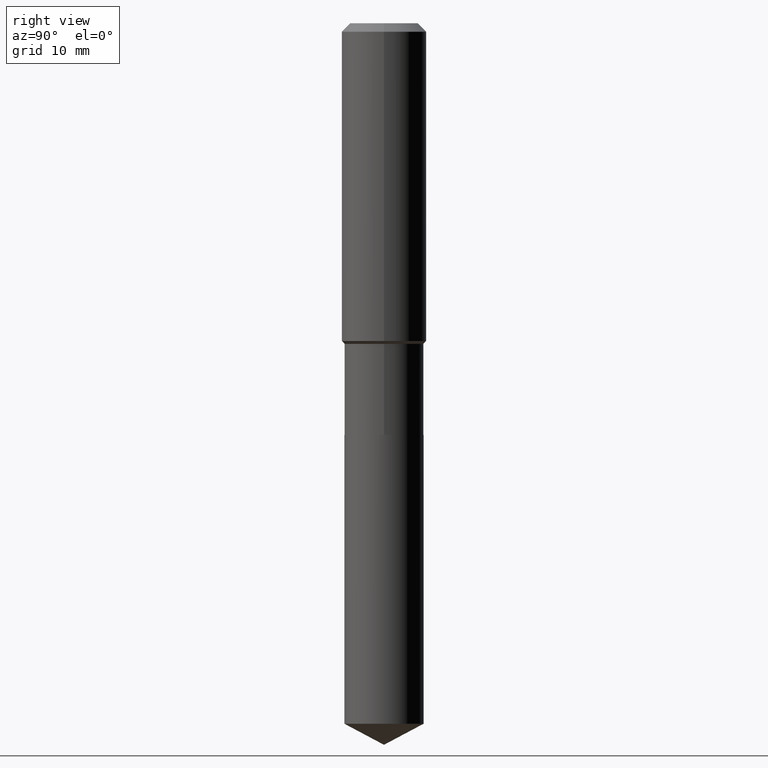
[diagram: clean part render]
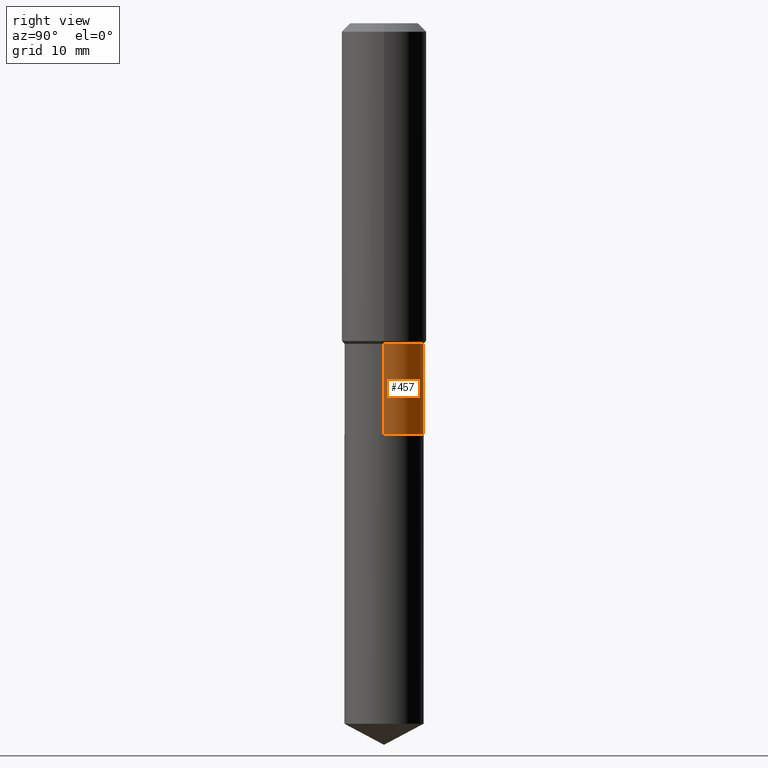
[diagram: same view with one face highlighted and labeled with its STEP entity id]
A machine part, right view. The second image highlights one B-rep face of the part: STEP entity #457.
In plain terms, the highlighted cylindrical surface (partial cylindrical patch) has radius 5.5994 mm, axis along (-0, 0, 1).
Its self-contained STEP definition (entity closure, byte-faithful):
#6 = VERTEX_POINT ( 'NONE', #71 ) ;
#13 = EDGE_LOOP ( 'NONE', ( #173, #463, #206, #405 ) ) ;
#16 = VECTOR ( 'NONE', #479, 39.37007874015748143 ) ;
#24 = EDGE_CURVE ( 'NONE', #269, #6, #284, .T. ) ;
#27 = LINE ( 'NONE', #58, #16 ) ;
#54 = EDGE_CURVE ( 'NONE', #419, #94, #27, .T. ) ;
#58 = CARTESIAN_POINT ( 'NONE',  ( 0.2204499999999999793, -1.539394122295937264E-15, 1.074953170224213743E-29 ) ) ;
#71 = CARTESIAN_POINT ( 'NONE',  ( -0.2204499999999999238, -5.547327192842826592E-15, -1.784200000000000008 ) ) ;
#93 = DIRECTION ( 'NONE',  ( -2.445468806185136597E-29, 3.491481338843145583E-15, 1.000000000000000000 ) ) ;
#94 = VERTEX_POINT ( 'NONE', #478 ) ;
#107 = CIRCLE ( 'NONE', #315, 0.2204500000000000071 ) ;
#120 = DIRECTION ( 'NONE',  ( 1.000000000000000000, -6.982962677686265133E-15, 0.000000000000000000 ) ) ;
#123 = AXIS2_PLACEMENT_3D ( 'NONE', #455, #486, #120 ) ;
#148 = DIRECTION ( 'NONE',  ( 1.000000000000000000, -6.982962677686267499E-15, 0.000000000000000000 ) ) ;
#173 = ORIENTED_EDGE ( 'NONE', *, *, #259, .T. ) ;
#198 = CIRCLE ( 'NONE', #123, 0.2204499999999999238 ) ;
#200 = AXIS2_PLACEMENT_3D ( 'NONE', #428, #93, #305 ) ;
#203 = CYLINDRICAL_SURFACE ( 'NONE', #200, 0.2204499999999999793 ) ;
#205 = EDGE_CURVE ( 'NONE', #94, #6, #198, .T. ) ;
#206 = ORIENTED_EDGE ( 'NONE', *, *, #205, .F. ) ;
#217 = DIRECTION ( 'NONE',  ( -2.445468806185136877E-29, 3.491481338843145188E-15, 1.000000000000000000 ) ) ;
#259 = EDGE_CURVE ( 'NONE', #419, #269, #107, .T. ) ;
#269 = VERTEX_POINT ( 'NONE', #354 ) ;
#276 = FACE_OUTER_BOUND ( 'NONE', #13, .T. ) ;
#284 = LINE ( 'NONE', #291, #433 ) ;
#291 = CARTESIAN_POINT ( 'NONE',  ( -0.2204499999999999793, 1.566391460983140713E-15, -1.084379240646693833E-29 ) ) ;
#305 = DIRECTION ( 'NONE',  ( 1.000000000000000000, -6.982962677686265922E-15, 4.876176775795934672E-29 ) ) ;
#315 = AXIS2_PLACEMENT_3D ( 'NONE', #334, #484, #148 ) ;
#334 = CARTESIAN_POINT ( 'NONE',  ( 5.601835394328292774E-29, -7.997936302887994361E-15, -2.290700000000000180 ) ) ;
#354 = CARTESIAN_POINT ( 'NONE',  ( -0.2204500000000000071, -5.547327192842825803E-15, -2.290700000000000180 ) ) ;
#405 = ORIENTED_EDGE ( 'NONE', *, *, #54, .F. ) ;
#419 = VERTEX_POINT ( 'NONE', #421 ) ;
#421 = CARTESIAN_POINT ( 'NONE',  ( 0.2204500000000000071, -9.537330425183932217E-15, -2.290700000000000180 ) ) ;
#428 = CARTESIAN_POINT ( 'NONE',  ( 0.000000000000000000, 0.000000000000000000, 0.000000000000000000 ) ) ;
#433 = VECTOR ( 'NONE', #217, 39.37007874015748143 ) ;
#455 = CARTESIAN_POINT ( 'NONE',  ( 4.363205443995520859E-29, -6.229501004763940248E-15, -1.784200000000000008 ) ) ;
#457 = ADVANCED_FACE ( 'NONE', ( #276 ), #203, .T. ) ;
#463 = ORIENTED_EDGE ( 'NONE', *, *, #24, .T. ) ;
#478 = CARTESIAN_POINT ( 'NONE',  ( 0.2204499999999999238, -7.768895127059877315E-15, -1.784200000000000008 ) ) ;
#479 = DIRECTION ( 'NONE',  ( -2.445468806185136877E-29, 3.491481338843145188E-15, 1.000000000000000000 ) ) ;
#484 = DIRECTION ( 'NONE',  ( -2.445468806185136597E-29, 3.491481338843145583E-15, 1.000000000000000000 ) ) ;
#486 = DIRECTION ( 'NONE',  ( -2.445468806185136597E-29, 3.491481338843145583E-15, 1.000000000000000000 ) ) ;